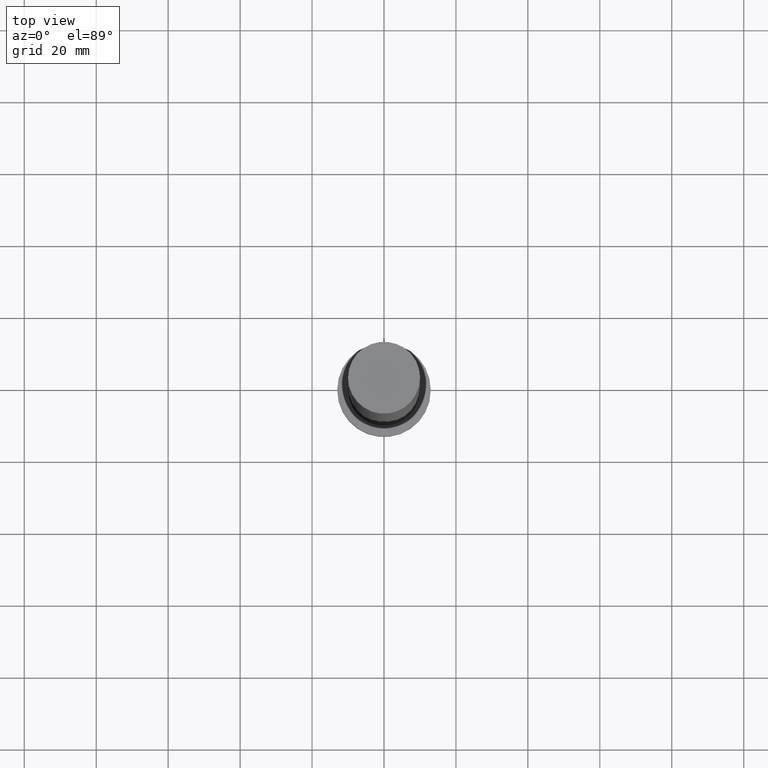
[diagram: clean part render]
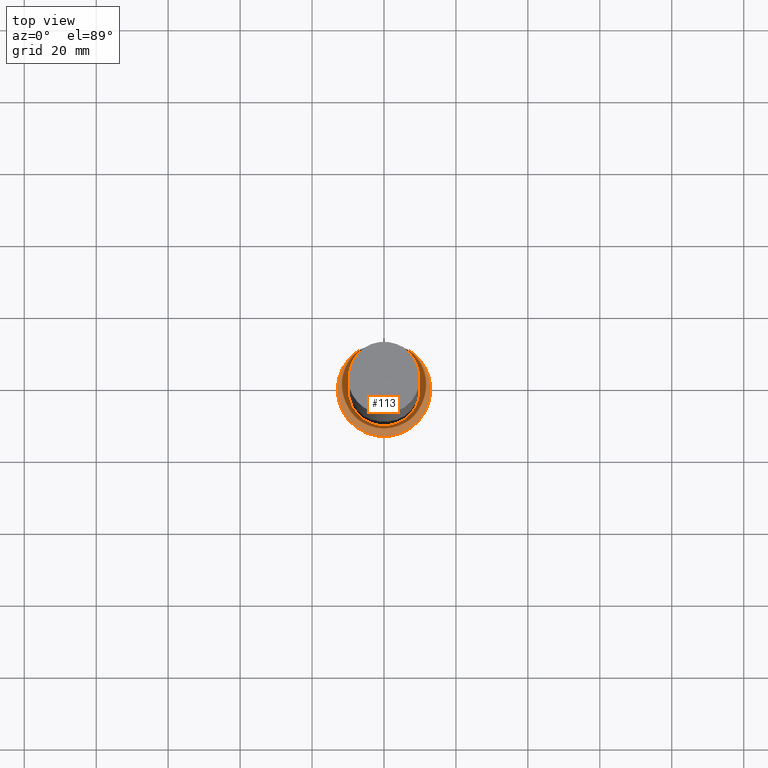
[diagram: same view with one face highlighted and labeled with its STEP entity id]
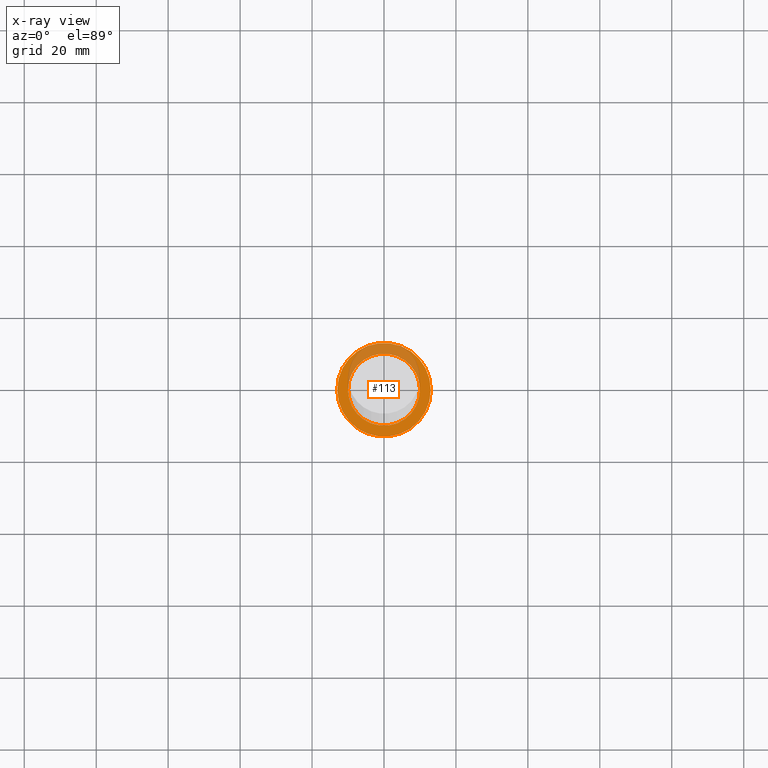
[diagram: x-ray of the same camera — body ghosted, the highlighted face saturated]
A machine part, top view. The second image highlights one B-rep face of the part: STEP entity #113.
The next image is the same camera in x-ray: the body ghosted, the highlighted face saturated — about 30% of this face is hidden behind the body in this view.
In plain terms, the highlighted planar face has unit normal (0, 0, 1).
Its self-contained STEP definition (entity closure, byte-faithful):
#1 = DIRECTION ( 'NONE',  ( 1.000000000000000000, 0.000000000000000000, 0.000000000000000000 ) ) ;
#3 = EDGE_CURVE ( 'NONE', #122, #185, #15, .T. ) ;
#15 = CIRCLE ( 'NONE', #143, 10.00000000000000000 ) ;
#26 = CARTESIAN_POINT ( 'NONE',  ( 0.000000000000000000, 0.000000000000000000, 8.000000000000000000 ) ) ;
#29 = CARTESIAN_POINT ( 'NONE',  ( 0.000000000000000000, 0.000000000000000000, 8.000000000000000000 ) ) ;
#47 = CARTESIAN_POINT ( 'NONE',  ( 0.000000000000000000, 0.000000000000000000, 8.000000000000000000 ) ) ;
#48 = VERTEX_POINT ( 'NONE', #194 ) ;
#56 = AXIS2_PLACEMENT_3D ( 'NONE', #26, #101, #183 ) ;
#64 = ORIENTED_EDGE ( 'NONE', *, *, #3, .F. ) ;
#66 = CARTESIAN_POINT ( 'NONE',  ( 10.00000000000000000, 1.224646799147353256E-15, 8.000000000000000000 ) ) ;
#78 = AXIS2_PLACEMENT_3D ( 'NONE', #47, #87, #179 ) ;
#87 = DIRECTION ( 'NONE',  ( 0.000000000000000000, 0.000000000000000000, 1.000000000000000000 ) ) ;
#89 = FACE_BOUND ( 'NONE', #169, .T. ) ;
#101 = DIRECTION ( 'NONE',  ( 0.000000000000000000, 0.000000000000000000, 1.000000000000000000 ) ) ;
#102 = CARTESIAN_POINT ( 'NONE',  ( 0.000000000000000000, 0.000000000000000000, 8.000000000000000000 ) ) ;
#113 = ADVANCED_FACE ( 'NONE', ( #89, #139 ), #200, .T. ) ;
#117 = ORIENTED_EDGE ( 'NONE', *, *, #160, .T. ) ;
#121 = DIRECTION ( 'NONE',  ( 0.000000000000000000, 0.000000000000000000, 1.000000000000000000 ) ) ;
#122 = VERTEX_POINT ( 'NONE', #66 ) ;
#135 = CIRCLE ( 'NONE', #78, 10.00000000000000000 ) ;
#139 = FACE_OUTER_BOUND ( 'NONE', #240, .T. ) ;
#143 = AXIS2_PLACEMENT_3D ( 'NONE', #102, #153, #175 ) ;
#148 = CARTESIAN_POINT ( 'NONE',  ( 0.000000000000000000, 0.000000000000000000, 8.000000000000000000 ) ) ;
#153 = DIRECTION ( 'NONE',  ( 0.000000000000000000, 0.000000000000000000, 1.000000000000000000 ) ) ;
#154 = AXIS2_PLACEMENT_3D ( 'NONE', #148, #121, #203 ) ;
#160 = EDGE_CURVE ( 'NONE', #48, #216, #213, .T. ) ;
#164 = ORIENTED_EDGE ( 'NONE', *, *, #188, .T. ) ;
#166 = ORIENTED_EDGE ( 'NONE', *, *, #173, .F. ) ;
#169 = EDGE_LOOP ( 'NONE', ( #166, #64 ) ) ;
#173 = EDGE_CURVE ( 'NONE', #185, #122, #135, .T. ) ;
#174 = CIRCLE ( 'NONE', #204, 13.00000000000000178 ) ;
#175 = DIRECTION ( 'NONE',  ( 1.000000000000000000, 0.000000000000000000, 0.000000000000000000 ) ) ;
#179 = DIRECTION ( 'NONE',  ( 1.000000000000000000, 0.000000000000000000, 0.000000000000000000 ) ) ;
#183 = DIRECTION ( 'NONE',  ( 1.000000000000000000, 0.000000000000000000, -0.000000000000000000 ) ) ;
#185 = VERTEX_POINT ( 'NONE', #222 ) ;
#186 = DIRECTION ( 'NONE',  ( 0.000000000000000000, 0.000000000000000000, 1.000000000000000000 ) ) ;
#188 = EDGE_CURVE ( 'NONE', #216, #48, #174, .T. ) ;
#194 = CARTESIAN_POINT ( 'NONE',  ( 13.00000000000000178, 1.592040838891559293E-15, 8.000000000000000000 ) ) ;
#200 = PLANE ( 'NONE',  #56 ) ;
#203 = DIRECTION ( 'NONE',  ( 1.000000000000000000, 0.000000000000000000, 0.000000000000000000 ) ) ;
#204 = AXIS2_PLACEMENT_3D ( 'NONE', #29, #186, #1 ) ;
#213 = CIRCLE ( 'NONE', #154, 13.00000000000000178 ) ;
#215 = CARTESIAN_POINT ( 'NONE',  ( -13.00000000000000178, 0.000000000000000000, 8.000000000000000000 ) ) ;
#216 = VERTEX_POINT ( 'NONE', #215 ) ;
#222 = CARTESIAN_POINT ( 'NONE',  ( -10.00000000000000000, 0.000000000000000000, 8.000000000000000000 ) ) ;
#240 = EDGE_LOOP ( 'NONE', ( #164, #117 ) ) ;